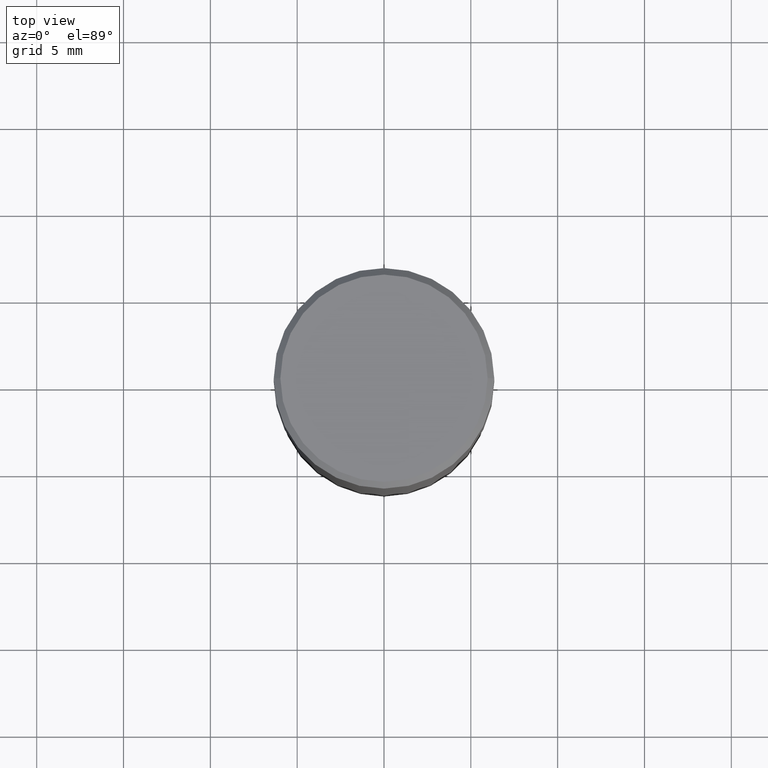
[diagram: clean part render]
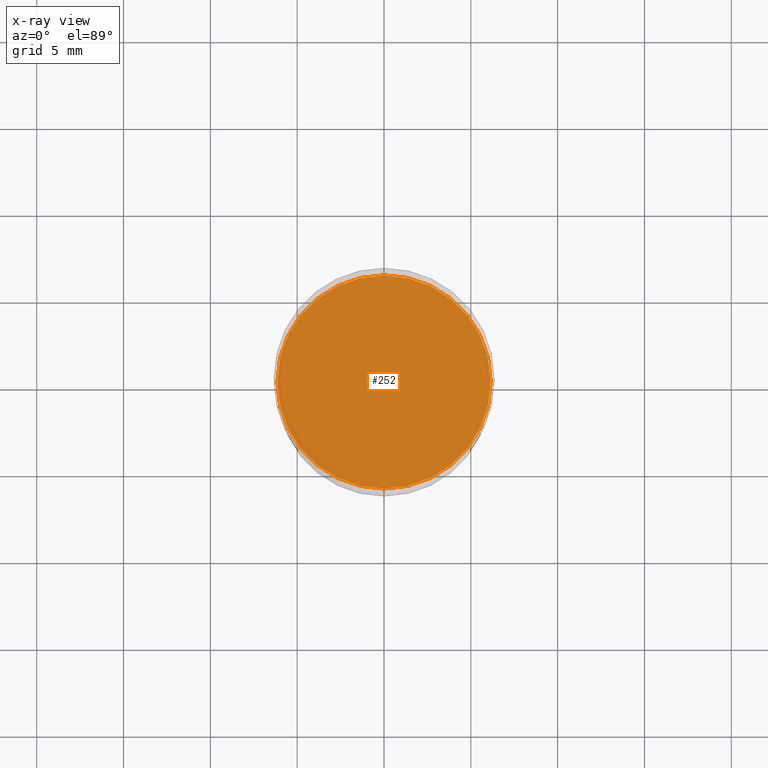
[diagram: x-ray — body ghosted, one internal face saturated and labeled with its STEP entity id]
A machine part, top view, then the same camera in x-ray: the body is ghosted and one INTERNAL B-rep face — a face not visible from any outside direction — is saturated and labeled: STEP entity #252.
In plain terms, the highlighted planar face has unit normal (-0, 0, 1).
Its self-contained STEP definition (entity closure, byte-faithful):
#22 = CARTESIAN_POINT ( 'NONE',  ( 1.222734403092568719E-29, -1.745740669421573186E-15, -0.5000000000000001110 ) ) ;
#52 = DIRECTION ( 'NONE',  ( 1.000000000000000000, -6.982962677686265922E-15, 4.876176775795935793E-29 ) ) ;
#53 = DIRECTION ( 'NONE',  ( -2.445468806185136597E-29, 3.491481338843145583E-15, 1.000000000000000000 ) ) ;
#69 = EDGE_LOOP ( 'NONE', ( #434, #297 ) ) ;
#150 = AXIS2_PLACEMENT_3D ( 'NONE', #411, #53, #336 ) ;
#158 = PLANE ( 'NONE',  #460 ) ;
#171 = CARTESIAN_POINT ( 'NONE',  ( 1.222734403092568719E-29, -1.745740669421573186E-15, -0.5000000000000001110 ) ) ;
#178 = AXIS2_PLACEMENT_3D ( 'NONE', #171, #271, #274 ) ;
#201 = CARTESIAN_POINT ( 'NONE',  ( 0.2417000000000000259, -3.433522748618344170E-15, -0.5000000000000001110 ) ) ;
#226 = DIRECTION ( 'NONE',  ( -2.438088387897960049E-29, 3.491481338843145188E-15, 1.000000000000000000 ) ) ;
#252 = ADVANCED_FACE ( 'NONE', ( #262 ), #158, .F. ) ;
#262 = FACE_OUTER_BOUND ( 'NONE', #69, .T. ) ;
#271 = DIRECTION ( 'NONE',  ( -2.445468806185136597E-29, 3.491481338843145583E-15, 1.000000000000000000 ) ) ;
#274 = DIRECTION ( 'NONE',  ( 1.000000000000000000, -6.982962677686266711E-15, 0.000000000000000000 ) ) ;
#280 = EDGE_CURVE ( 'NONE', #385, #325, #346, .T. ) ;
#297 = ORIENTED_EDGE ( 'NONE', *, *, #280, .F. ) ;
#325 = VERTEX_POINT ( 'NONE', #201 ) ;
#336 = DIRECTION ( 'NONE',  ( 1.000000000000000000, -6.982962677686266711E-15, 0.000000000000000000 ) ) ;
#346 = CIRCLE ( 'NONE', #150, 0.2417000000000000259 ) ;
#349 = EDGE_CURVE ( 'NONE', #325, #385, #453, .T. ) ;
#385 = VERTEX_POINT ( 'NONE', #454 ) ;
#411 = CARTESIAN_POINT ( 'NONE',  ( 1.222734403092568719E-29, -1.745740669421573186E-15, -0.5000000000000001110 ) ) ;
#434 = ORIENTED_EDGE ( 'NONE', *, *, #349, .F. ) ;
#453 = CIRCLE ( 'NONE', #178, 0.2417000000000000259 ) ;
#454 = CARTESIAN_POINT ( 'NONE',  ( -0.2417000000000000259, -2.570964991530020892E-17, -0.5000000000000001110 ) ) ;
#460 = AXIS2_PLACEMENT_3D ( 'NONE', #22, #226, #52 ) ;